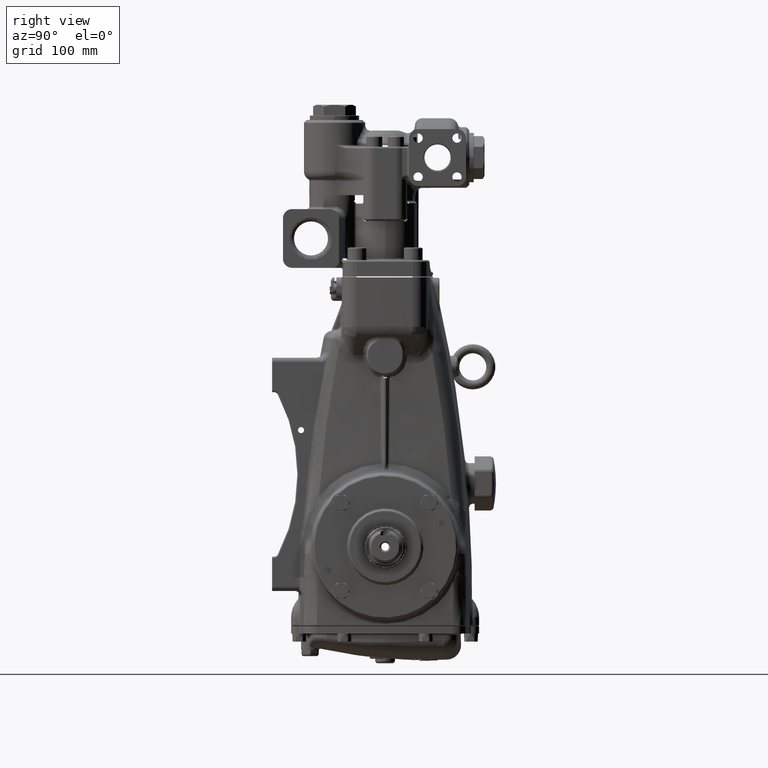
[diagram: clean part render]
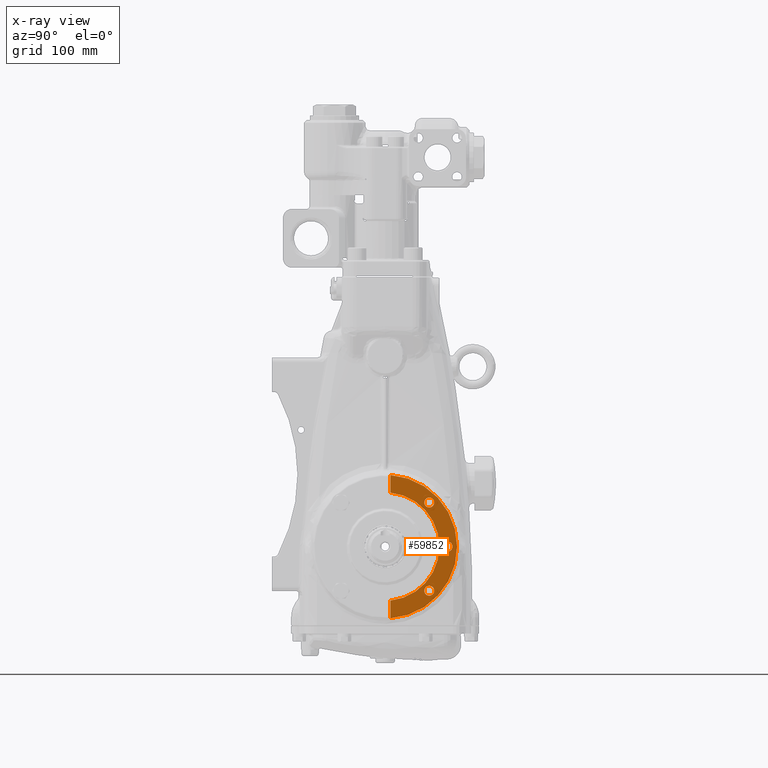
[diagram: x-ray — body ghosted, one internal face saturated and labeled with its STEP entity id]
A machine part, right view, then the same camera in x-ray: the body is ghosted and one INTERNAL B-rep face — a face not visible from any outside direction — is saturated and labeled: STEP entity #59852.
In plain terms, the highlighted planar face has unit normal (-1, -0, 0).
Its self-contained STEP definition (entity closure, byte-faithful):
#111 = VERTEX_POINT ( 'NONE', #77572 ) ;
#4666 = CIRCLE ( 'NONE', #79232, 0.2165354330708663400 ) ;
#10244 = DIRECTION ( 'NONE',  ( 1.392087464881032879E-17, -1.000000000000000000, 5.273559366969492778E-15 ) ) ;
#11256 = ORIENTED_EDGE ( 'NONE', *, *, #80491, .T. ) ;
#13170 = AXIS2_PLACEMENT_3D ( 'NONE', #86045, #126734, #35320 ) ;
#13634 = CARTESIAN_POINT ( 'NONE',  ( -4.921259842519686067, 2.716535433070867089, -1.394146034854392752E-14 ) ) ;
#14244 = VERTEX_POINT ( 'NONE', #42556 ) ;
#14551 = ORIENTED_EDGE ( 'NONE', *, *, #37982, .T. ) ;
#15098 = DIRECTION ( 'NONE',  ( -5.804576252323928789E-17, -5.273559366969492778E-15, -1.000000000000000000 ) ) ;
#15721 = EDGE_LOOP ( 'NONE', ( #50306, #103178 ) ) ;
#15992 = DIRECTION ( 'NONE',  ( 1.000000000000000000, 1.392087464881007303E-17, -5.804576252323939882E-17 ) ) ;
#17347 = DIRECTION ( 'NONE',  ( 1.000000000000000000, 1.392087464881007303E-17, -5.804576252323939882E-17 ) ) ;
#18683 = CARTESIAN_POINT ( 'NONE',  ( -4.921259842519686067, 0.2362204724409328049, -2.350364024661308449 ) ) ;
#20088 = VERTEX_POINT ( 'NONE', #77365 ) ;
#20242 = PLANE ( 'NONE',  #24536 ) ;
#21875 = DIRECTION ( 'NONE',  ( 0.0000000000000000000, 1.000000000000000000, -5.273559366969488045E-15 ) ) ;
#23318 = CIRCLE ( 'NONE', #97897, 0.2165354330708660624 ) ;
#23868 = CARTESIAN_POINT ( 'NONE',  ( -4.921259842519686067, 2.500000000000000444, -1.277302994469104264E-14 ) ) ;
#24149 = EDGE_CURVE ( 'NONE', #129568, #97075, #44336, .T. ) ;
#24536 = AXIS2_PLACEMENT_3D ( 'NONE', #60951, #101666, #10244 ) ;
#25251 = DIRECTION ( 'NONE',  ( 0.0000000000000000000, -1.000000000000000000, 5.273559366969492778E-15 ) ) ;
#26073 = CARTESIAN_POINT ( 'NONE',  ( -4.921259842519686067, 0.2362204724409575907, 2.350364024661306228 ) ) ;
#28031 = DIRECTION ( 'NONE',  ( 1.000000000000000000, 1.392087464881007303E-17, -5.804576252323939882E-17 ) ) ;
#29944 = VERTEX_POINT ( 'NONE', #18683 ) ;
#30268 = FACE_BOUND ( 'NONE', #91389, .T. ) ;
#31136 = CARTESIAN_POINT ( 'NONE',  ( -4.921259842519686067, 2.933070866141733291, -1.508337280989559020E-14 ) ) ;
#32352 = EDGE_CURVE ( 'NONE', #20088, #129714, #121325, .T. ) ;
#33389 = VERTEX_POINT ( 'NONE', #116315 ) ;
#35320 = DIRECTION ( 'NONE',  ( 0.0000000000000000000, 1.000000000000000000, -5.273559366969492778E-15 ) ) ;
#37161 = CARTESIAN_POINT ( 'NONE',  ( -4.921259842519686067, 0.2362204724409616707, 3.120994550013498792 ) ) ;
#37982 = EDGE_CURVE ( 'NONE', #81787, #33389, #117490, .T. ) ;
#41142 = ORIENTED_EDGE ( 'NONE', *, *, #117240, .F. ) ;
#42556 = CARTESIAN_POINT ( 'NONE',  ( -4.921259842519686067, 0.2362204724409278089, -3.120994550013500568 ) ) ;
#44336 = CIRCLE ( 'NONE', #118874, 0.2165354330708663400 ) ;
#44662 = AXIS2_PLACEMENT_3D ( 'NONE', #114028, #53297, #94036 ) ;
#50306 = ORIENTED_EDGE ( 'NONE', *, *, #57616, .F. ) ;
#52597 = EDGE_CURVE ( 'NONE', #97075, #129568, #4666, .T. ) ;
#53297 = DIRECTION ( 'NONE',  ( 1.000000000000000000, 1.392087464881007303E-17, -5.804576252323939882E-17 ) ) ;
#54328 = DIRECTION ( 'NONE',  ( 1.000000000000000000, 1.392087464881007303E-17, -5.804576252323939882E-17 ) ) ;
#54379 = CIRCLE ( 'NONE', #128910, 0.2165354330708660624 ) ;
#54408 = ORIENTED_EDGE ( 'NONE', *, *, #32352, .F. ) ;
#56506 = CARTESIAN_POINT ( 'NONE',  ( -4.921259842519686067, 2.137416059128822265, 1.920880626057932306 ) ) ;
#56674 = DIRECTION ( 'NONE',  ( 0.0000000000000000000, 1.000000000000000000, -5.046468293750713771E-15 ) ) ;
#57616 = EDGE_CURVE ( 'NONE', #111, #117580, #54379, .T. ) ;
#58030 = DIRECTION ( 'NONE',  ( 0.0000000000000000000, 1.000000000000000000, -5.046468293750713771E-15 ) ) ;
#59852 = ADVANCED_FACE ( 'NONE', ( #121661, #30268, #70964, #111656 ), #20242, .F. ) ;
#60951 = CARTESIAN_POINT ( 'NONE',  ( -4.921259842519686067, 8.794565639486060856E-17, 3.843505302314713897E-16 ) ) ;
#63816 = AXIS2_PLACEMENT_3D ( 'NONE', #107409, #15992, #56674 ) ;
#65809 = LINE ( 'NONE', #106511, #75210 ) ;
#66778 = DIRECTION ( 'NONE',  ( -5.804576252323928789E-17, -5.273559366969492778E-15, -1.000000000000000000 ) ) ;
#68745 = DIRECTION ( 'NONE',  ( 0.0000000000000000000, 1.000000000000000000, -5.046468293750713771E-15 ) ) ;
#70680 = CIRCLE ( 'NONE', #13170, 3.129921259842520342 ) ;
#70964 = FACE_BOUND ( 'NONE', #117932, .T. ) ;
#72593 = CARTESIAN_POINT ( 'NONE',  ( -4.921259842519686067, 2.716535433070867089, -1.394146034854392752E-14 ) ) ;
#73031 = AXIS2_PLACEMENT_3D ( 'NONE', #75979, #116667, #25251 ) ;
#75210 = VECTOR ( 'NONE', #15098, 39.37007874015748143 ) ;
#75979 = CARTESIAN_POINT ( 'NONE',  ( -4.921259842519686067, 8.794565639486060856E-17, 3.843505302314713897E-16 ) ) ;
#76389 = ORIENTED_EDGE ( 'NONE', *, *, #24149, .F. ) ;
#77365 = CARTESIAN_POINT ( 'NONE',  ( -4.921259842519686067, 1.704345192987090085, 1.920880626057934526 ) ) ;
#77572 = CARTESIAN_POINT ( 'NONE',  ( -4.921259842519686067, 2.137416059128817380, -1.920880626057938745 ) ) ;
#79141 = ORIENTED_EDGE ( 'NONE', *, *, #52597, .F. ) ;
#79232 = AXIS2_PLACEMENT_3D ( 'NONE', #13634, #54328, #95054 ) ;
#79753 = ORIENTED_EDGE ( 'NONE', *, *, #108802, .T. ) ;
#80061 = EDGE_CURVE ( 'NONE', #33389, #29944, #130510, .T. ) ;
#80491 = EDGE_CURVE ( 'NONE', #29944, #14244, #65809, .T. ) ;
#81787 = VERTEX_POINT ( 'NONE', #37161 ) ;
#86045 = CARTESIAN_POINT ( 'NONE',  ( -4.921259842519686067, 8.794565639486060856E-17, 3.843505302314713897E-16 ) ) ;
#91341 = ORIENTED_EDGE ( 'NONE', *, *, #80061, .T. ) ;
#91389 = EDGE_LOOP ( 'NONE', ( #79141, #76389 ) ) ;
#94036 = DIRECTION ( 'NONE',  ( 0.0000000000000000000, 1.000000000000000000, -5.046468293750713771E-15 ) ) ;
#95054 = DIRECTION ( 'NONE',  ( 0.0000000000000000000, 1.000000000000000000, -5.273559366969488045E-15 ) ) ;
#97075 = VERTEX_POINT ( 'NONE', #31136 ) ;
#97897 = AXIS2_PLACEMENT_3D ( 'NONE', #108744, #17347, #58030 ) ;
#99364 = EDGE_LOOP ( 'NONE', ( #91341, #11256, #79753, #14551 ) ) ;
#101266 = CARTESIAN_POINT ( 'NONE',  ( -4.921259842519686067, 1.704345192987085422, -1.920880626057936524 ) ) ;
#101666 = DIRECTION ( 'NONE',  ( -1.000000000000000000, -1.392087464881002372E-17, 5.804576252323939882E-17 ) ) ;
#102228 = CIRCLE ( 'NONE', #44662, 0.2165354330708660624 ) ;
#103178 = ORIENTED_EDGE ( 'NONE', *, *, #117411, .F. ) ;
#106511 = CARTESIAN_POINT ( 'NONE',  ( -4.921259842519686067, 0.2362204724409287526, -3.120994550013500124 ) ) ;
#107409 = CARTESIAN_POINT ( 'NONE',  ( -4.921259842519686067, 1.920880626057956064, 1.920880626057933416 ) ) ;
#108744 = CARTESIAN_POINT ( 'NONE',  ( -4.921259842519686067, 1.920880626057956064, 1.920880626057933416 ) ) ;
#108802 = EDGE_CURVE ( 'NONE', #14244, #81787, #70680, .T. ) ;
#111656 = FACE_OUTER_BOUND ( 'NONE', #99364, .T. ) ;
#113276 = DIRECTION ( 'NONE',  ( 1.000000000000000000, 1.392087464881007303E-17, -5.804576252323939882E-17 ) ) ;
#114028 = CARTESIAN_POINT ( 'NONE',  ( -4.921259842519686067, 1.920880626057951623, -1.920880626057937635 ) ) ;
#115422 = VECTOR ( 'NONE', #66778, 39.37007874015748143 ) ;
#116315 = CARTESIAN_POINT ( 'NONE',  ( -4.921259842519686067, 0.2362204724409575907, 2.350364024661306228 ) ) ;
#116667 = DIRECTION ( 'NONE',  ( -1.000000000000000000, -1.392087464881007303E-17, 5.804576252323939882E-17 ) ) ;
#117240 = EDGE_CURVE ( 'NONE', #129714, #20088, #23318, .T. ) ;
#117411 = EDGE_CURVE ( 'NONE', #117580, #111, #102228, .T. ) ;
#117490 = LINE ( 'NONE', #26073, #115422 ) ;
#117580 = VERTEX_POINT ( 'NONE', #101266 ) ;
#117932 = EDGE_LOOP ( 'NONE', ( #41142, #54408 ) ) ;
#118874 = AXIS2_PLACEMENT_3D ( 'NONE', #72593, #113276, #21875 ) ;
#119441 = CARTESIAN_POINT ( 'NONE',  ( -4.921259842519686067, 1.920880626057951623, -1.920880626057937635 ) ) ;
#121325 = CIRCLE ( 'NONE', #63816, 0.2165354330708660624 ) ;
#121661 = FACE_BOUND ( 'NONE', #15721, .T. ) ;
#126734 = DIRECTION ( 'NONE',  ( 1.000000000000000000, 1.392087464881007303E-17, -5.804576252323939882E-17 ) ) ;
#128910 = AXIS2_PLACEMENT_3D ( 'NONE', #119441, #28031, #68745 ) ;
#129568 = VERTEX_POINT ( 'NONE', #23868 ) ;
#129714 = VERTEX_POINT ( 'NONE', #56506 ) ;
#130510 = CIRCLE ( 'NONE', #73031, 2.362204724409449064 ) ;